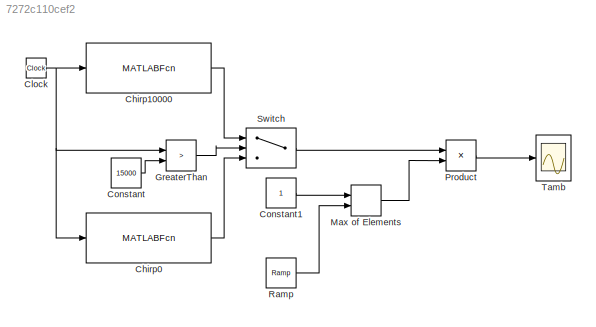
MODEL slx_7272c110cef2
KIND model
CONFIG AbsTol = auto
CONFIG EnableMultiTasking = off
CONFIG FixedStep = 1
CONFIG MaxStep = auto
CONFIG MinStep = auto
CONFIG RelTol = 1e-3
CONFIG SampleTimeConstraint = Unconstrained
CONFIG Solver = ode1
CONFIG SolverName = ode1
CONFIG StartTime = 0.0
CONFIG StopTime = 20000
BLOCK [MATLABFcn] Chirp0
  MATLABFcn = 10*cos(2*pi/1e4*(8*u-2/1e4*(u^2)))
  OutputDimensions = 1
  Ports = [1, 1]
BLOCK [MATLABFcn] Chirp10000
  MATLABFcn = 10*cos(2*pi/1e4*(2*u)-pi)
  OutputDimensions = 1
  Ports = [1, 1]
BLOCK [Clock] Clock
BLOCK [Constant] Constant
  Value = 15000
BLOCK [Constant] Constant1
BLOCK [RelationalOperator] GreaterThan
  InputSameDT = off
  Operator = >
  OutDataTypeStr = boolean
  Ports = [2, 1]
  RndMeth = Simplest
BLOCK [MinMax] Max of Elements
  InputSameDT = off
  Inputs = 2
  Ports = [2, 1]
  SaturateOnIntegerOverflow = off
BLOCK [Product] Product
  InputSameDT = off
  OutDataTypeStr = Inherit: Inherit via internal rule
  Ports = [2, 1]
  RndMeth = Floor
  SaturateOnIntegerOverflow = off
BLOCK [Reference] Ramp  REF=simulink/Sources/Ramp
  Ports = [0, 1]
  SourceBlock = simulink/Sources/Ramp
  SourceProductBaseCode = SL
  SourceProductName = Simulink
  SourceType = Ramp
BLOCK [Switch] Switch
  Criteria = u2 > Threshold
  InputSameDT = off
  SaturateOnIntegerOverflow = off
BLOCK [Scope] Tamb
  Floating = off
  NumInputPorts = 1
  Ports = [1]
  ScopeSpecificationString = Simulink.scopes.TimeScopeBlockCfg('CurrentConfiguration', extmgr.ConfigurationSet(extmgr.Configuration('Core','General UI',true),extmgr.Configuration('Core','Source UI',true),extmgr.Configuration('Sources','WiredSimulink',true),extmgr.Configuration('Visuals','Time Domain',true,'SerializedDisplays',{struct('MinYLimReal','-11.07076','MaxYLimReal','12.3412','YLabelReal','','MinYLimMag','0.00000','Max...<+1404ch>
LINE Chirp0:1 -> Switch:3
LINE Chirp10000:1 -> Switch:1
NET Clock:1 -> Chirp0:1, Chirp10000:1, GreaterThan:1
LINE Constant1:1 -> Max of Elements:1
LINE Constant:1 -> GreaterThan:2
LINE GreaterThan:1 -> Switch:2
LINE Max of Elements:1 -> Product:2
LINE Product:1 -> Tamb:1
LINE Ramp:1 -> Max of Elements:2
LINE Switch:1 -> Product:1
note: NET lines group one-source signal fan-out (src -> all destinations, sorted); 1:1 wires keep LINE
